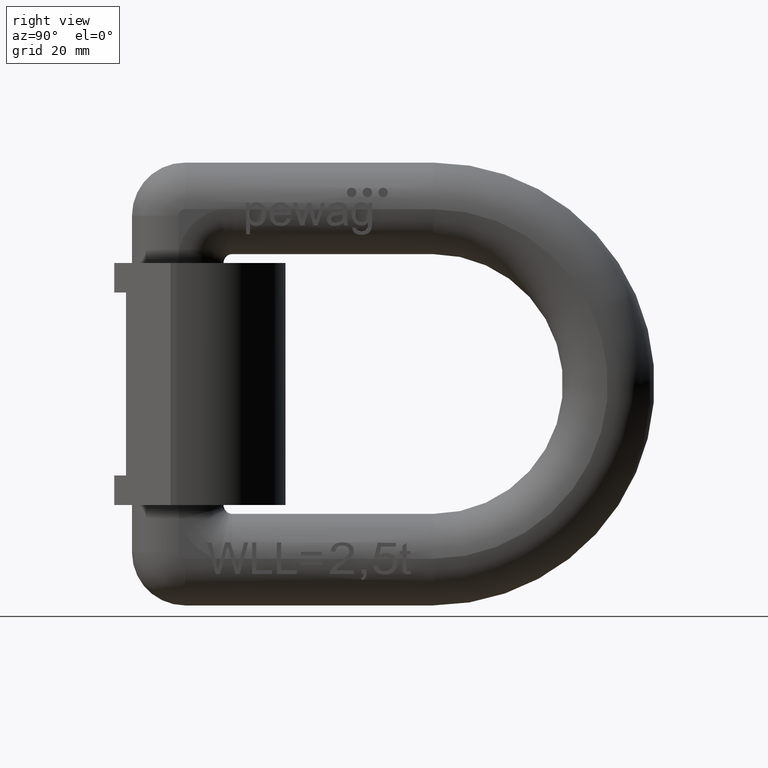
[diagram: clean part render]
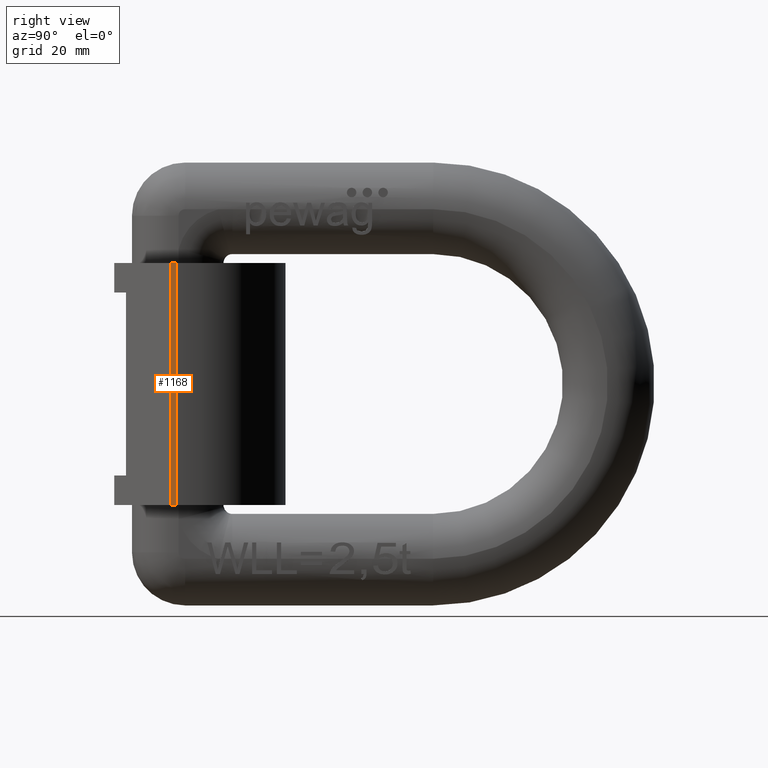
[diagram: same view with one face highlighted and labeled with its STEP entity id]
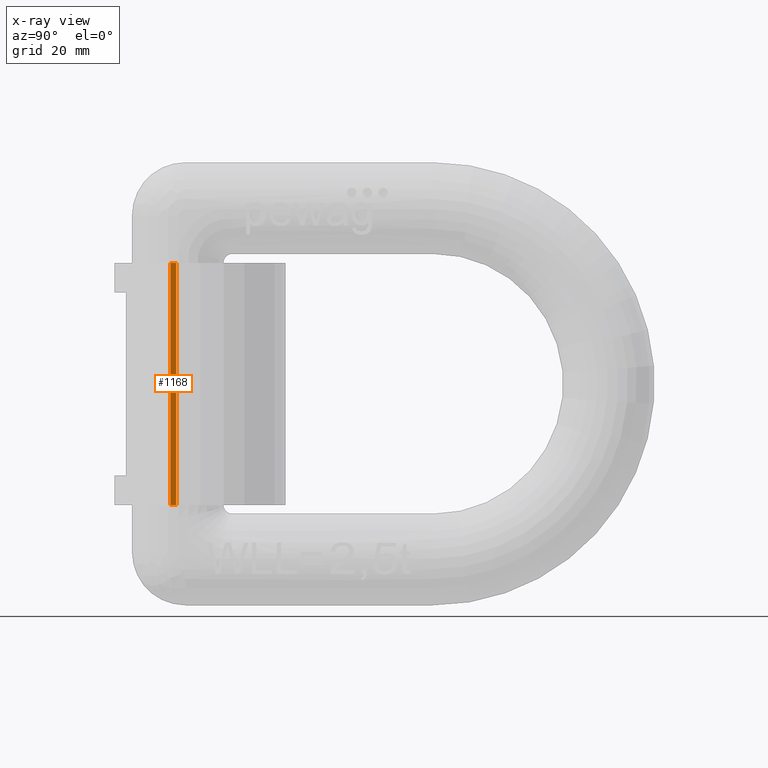
[diagram: x-ray of the same camera — body ghosted, the highlighted face saturated]
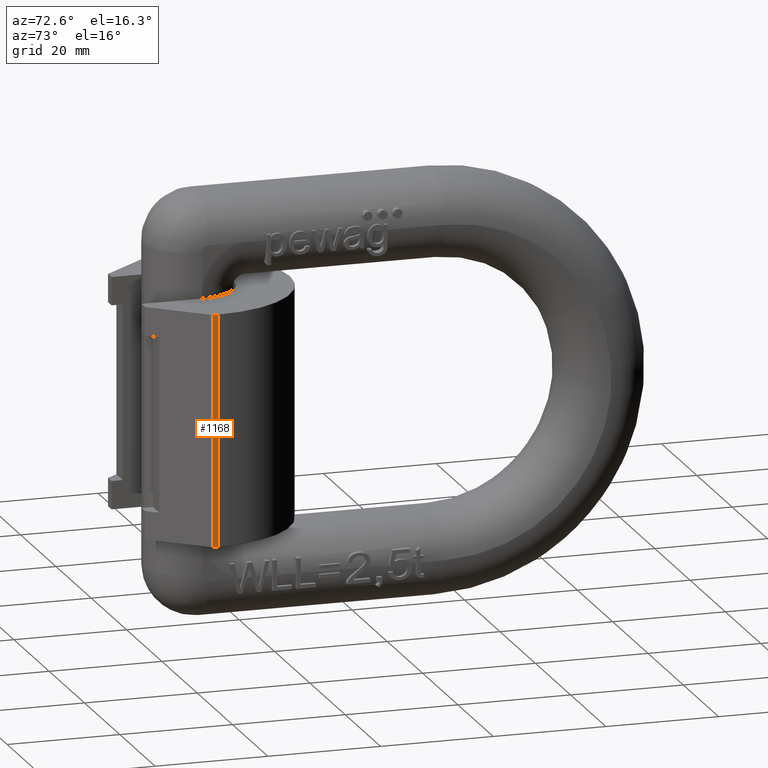
[diagram: same view with one face highlighted and labeled with its STEP entity id]
A machine part, right view. The second image highlights one B-rep face of the part: STEP entity #1168.
The next image is the same camera in x-ray: the body ghosted, the highlighted face saturated — about 0% of this face is hidden behind the body in this view.
A second angle (auxiliary view) of the same face is appended — the face is thin or edge-on in the first view.
In plain terms, the highlighted planar face has unit normal (-1, 0, 0).
Its self-contained STEP definition (entity closure, byte-faithful):
#1168=ADVANCED_FACE('',(#1876),#1644,.F.);
#1644=PLANE('',#9051);
#1876=FACE_OUTER_BOUND('',#2332,.T.);
#2332=EDGE_LOOP('',(#3002,#3003,#3004,#3005));
#3002=ORIENTED_EDGE('',*,*,#6461,.F.);
#3003=ORIENTED_EDGE('',*,*,#6502,.T.);
#3004=ORIENTED_EDGE('',*,*,#6468,.T.);
#3005=ORIENTED_EDGE('',*,*,#6503,.F.);
#5589=VERTEX_POINT('',#11218);
#5590=VERTEX_POINT('',#11220);
#5596=VERTEX_POINT('',#11233);
#5597=VERTEX_POINT('',#11235);
#6461=EDGE_CURVE('',#5589,#5590,#7780,.T.);
#6468=EDGE_CURVE('',#5597,#5596,#7785,.T.);
#6502=EDGE_CURVE('',#5589,#5597,#7818,.T.);
#6503=EDGE_CURVE('',#5590,#5596,#7819,.T.);
#7780=LINE('',#11219,#8326);
#7785=LINE('',#11234,#8331);
#7818=LINE('',#11300,#8364);
#7819=LINE('',#11301,#8365);
#8326=VECTOR('',#9529,1.);
#8331=VECTOR('',#9540,1.);
#8364=VECTOR('',#9597,1.);
#8365=VECTOR('',#9598,1.);
#9051=AXIS2_PLACEMENT_3D('',#11302,#9599,#9600);
#9529=DIRECTION('',(0.,1.,0.));
#9540=DIRECTION('',(0.,1.,0.));
#9597=DIRECTION('',(0.,0.,-1.));
#9598=DIRECTION('',(0.,0.,-1.));
#9599=DIRECTION('',(-1.,0.,0.));
#9600=DIRECTION('',(0.,0.,1.));
#11218=CARTESIAN_POINT('',(18.5,9.53402874075368,20.5));
#11219=CARTESIAN_POINT('',(18.5,0.,20.5));
#11220=CARTESIAN_POINT('',(18.5,10.5,20.5));
#11233=CARTESIAN_POINT('',(18.5,10.5,-20.5));
#11234=CARTESIAN_POINT('',(18.5,0.,-20.5));
#11235=CARTESIAN_POINT('',(18.5,9.53402874075368,-20.5));
#11300=CARTESIAN_POINT('',(18.5,9.53402874075368,22.5500275));
#11301=CARTESIAN_POINT('',(18.5,10.5,20.5));
#11302=CARTESIAN_POINT('',(18.5,0.,20.5));